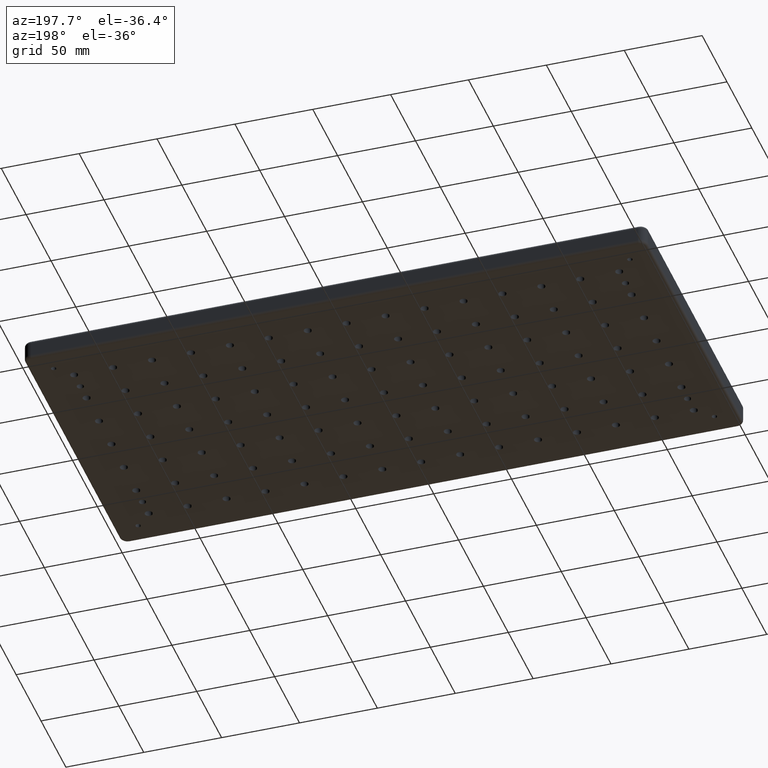
[diagram: clean part render]
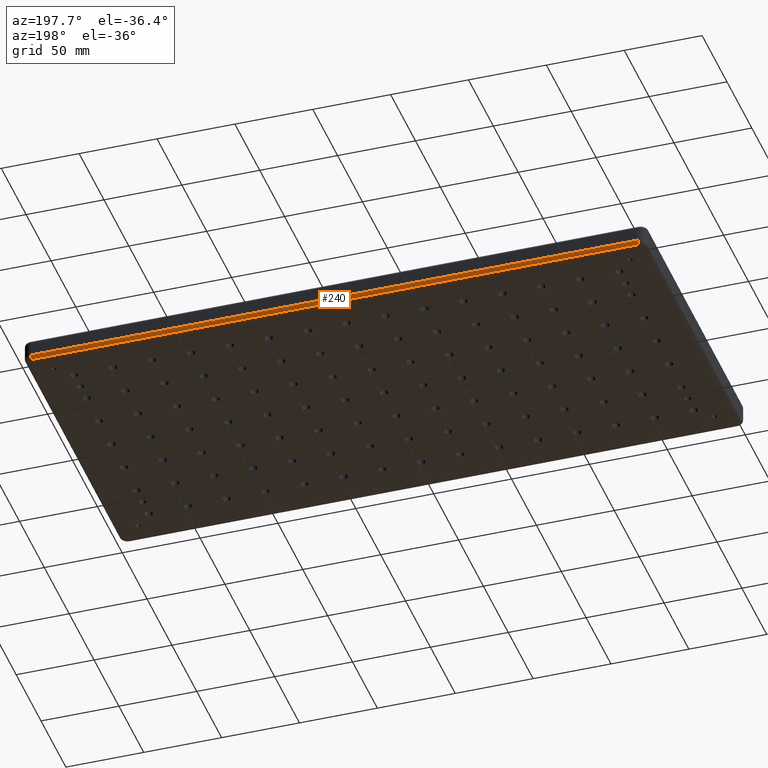
[diagram: same view with one face highlighted and labeled with its STEP entity id]
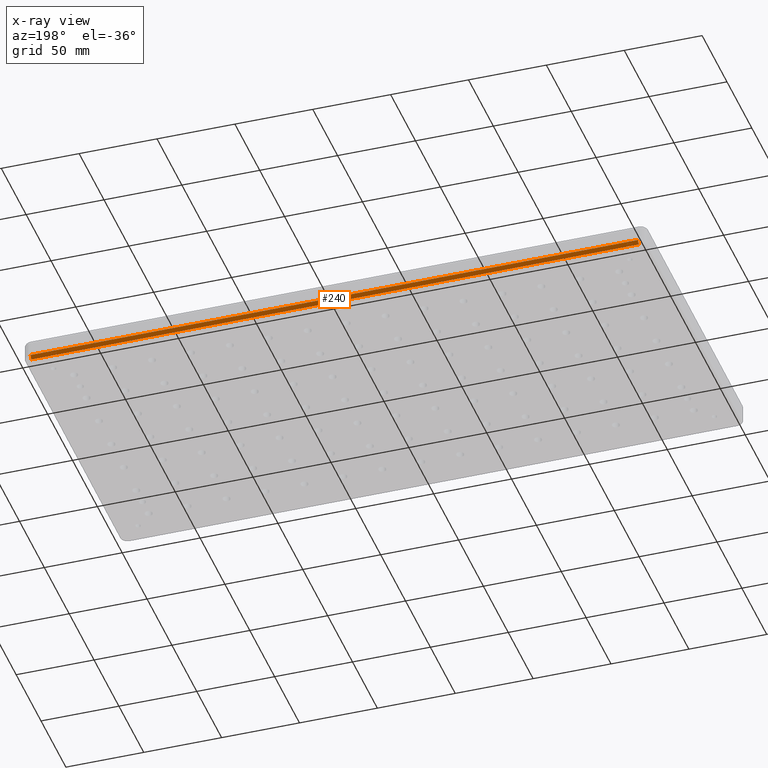
[diagram: x-ray of the same camera — body ghosted, the highlighted face saturated]
A machine part, auxiliary view. The second image highlights one B-rep face of the part: STEP entity #240.
The next image is the same camera in x-ray: the body ghosted, the highlighted face saturated — about 0% of this face is hidden behind the body in this view.
In plain terms, the highlighted cylindrical surface (edge-blend (fillet) strip) has radius 2 mm, axis along (-1, -0, 0).
Its self-contained STEP definition (entity closure, byte-faithful):
#111 = DIRECTION ( 'NONE',  ( 0.0000000000000000000, 0.0000000000000000000, 1.000000000000000000 ) ) ;
#240 = ADVANCED_FACE ( 'NONE', ( #2103 ), #1532, .T. ) ;
#426 = VERTEX_POINT ( 'NONE', #4647 ) ;
#752 = EDGE_LOOP ( 'NONE', ( #2467, #7825, #8319, #5230 ) ) ;
#1382 = DIRECTION ( 'NONE',  ( 0.0000000000000000000, 0.0000000000000000000, 1.000000000000000000 ) ) ;
#1469 = DIRECTION ( 'NONE',  ( 0.0000000000000000000, -1.000000000000000000, 0.0000000000000000000 ) ) ;
#1532 = CYLINDRICAL_SURFACE ( 'NONE', #8344, 2.000000000000001800 ) ;
#1894 = CARTESIAN_POINT ( 'NONE',  ( 195.0000000000001100, 100.0000000000000100, -11.00000000000000000 ) ) ;
#2103 = FACE_OUTER_BOUND ( 'NONE', #752, .T. ) ;
#2467 = ORIENTED_EDGE ( 'NONE', *, *, #2557, .T. ) ;
#2557 = EDGE_CURVE ( 'NONE', #8194, #426, #7188, .T. ) ;
#2762 = LINE ( 'NONE', #4732, #6180 ) ;
#2966 = DIRECTION ( 'NONE',  ( -1.000000000000000000, 0.0000000000000000000, 0.0000000000000000000 ) ) ;
#3230 = EDGE_CURVE ( 'NONE', #8194, #5443, #3846, .T. ) ;
#3287 = DIRECTION ( 'NONE',  ( 1.000000000000000000, 1.067522139062650100E-016, -0.0000000000000000000 ) ) ;
#3826 = AXIS2_PLACEMENT_3D ( 'NONE', #6504, #5770, #1382 ) ;
#3846 = LINE ( 'NONE', #4303, #9441 ) ;
#4303 = CARTESIAN_POINT ( 'NONE',  ( -195.0000000000001100, 100.0000000000000000, -11.00000000000000000 ) ) ;
#4356 = CARTESIAN_POINT ( 'NONE',  ( -195.0000000000001100, 98.00000000000000000, -11.00000000000000000 ) ) ;
#4647 = CARTESIAN_POINT ( 'NONE',  ( 195.0000000000001100, 98.00000000000001400, -13.00000000000000000 ) ) ;
#4732 = CARTESIAN_POINT ( 'NONE',  ( -195.0000000000001100, 98.00000000000000000, -13.00000000000000000 ) ) ;
#5138 = CARTESIAN_POINT ( 'NONE',  ( 195.0000000000001100, 98.00000000000001400, -11.00000000000000000 ) ) ;
#5230 = ORIENTED_EDGE ( 'NONE', *, *, #3230, .F. ) ;
#5443 = VERTEX_POINT ( 'NONE', #7313 ) ;
#5654 = VERTEX_POINT ( 'NONE', #6891 ) ;
#5770 = DIRECTION ( 'NONE',  ( -1.000000000000000000, 0.0000000000000000000, 0.0000000000000000000 ) ) ;
#5792 = DIRECTION ( 'NONE',  ( -1.000000000000000000, -1.067522139062650100E-016, 0.0000000000000000000 ) ) ;
#5804 = AXIS2_PLACEMENT_3D ( 'NONE', #5138, #2966, #111 ) ;
#6180 = VECTOR ( 'NONE', #3287, 1000.000000000000000 ) ;
#6504 = CARTESIAN_POINT ( 'NONE',  ( -195.0000000000001100, 98.00000000000000000, -11.00000000000000000 ) ) ;
#6891 = CARTESIAN_POINT ( 'NONE',  ( -195.0000000000001100, 98.00000000000000000, -13.00000000000000000 ) ) ;
#7188 = CIRCLE ( 'NONE', #5804, 2.000000000000000000 ) ;
#7313 = CARTESIAN_POINT ( 'NONE',  ( -195.0000000000001100, 100.0000000000000000, -11.00000000000000000 ) ) ;
#7354 = DIRECTION ( 'NONE',  ( -1.000000000000000000, -1.067522139062650100E-016, 0.0000000000000000000 ) ) ;
#7542 = EDGE_CURVE ( 'NONE', #5654, #426, #2762, .T. ) ;
#7825 = ORIENTED_EDGE ( 'NONE', *, *, #7542, .F. ) ;
#8194 = VERTEX_POINT ( 'NONE', #1894 ) ;
#8319 = ORIENTED_EDGE ( 'NONE', *, *, #8859, .F. ) ;
#8344 = AXIS2_PLACEMENT_3D ( 'NONE', #4356, #7354, #1469 ) ;
#8457 = CIRCLE ( 'NONE', #3826, 2.000000000000000000 ) ;
#8859 = EDGE_CURVE ( 'NONE', #5443, #5654, #8457, .T. ) ;
#9441 = VECTOR ( 'NONE', #5792, 1000.000000000000000 ) ;